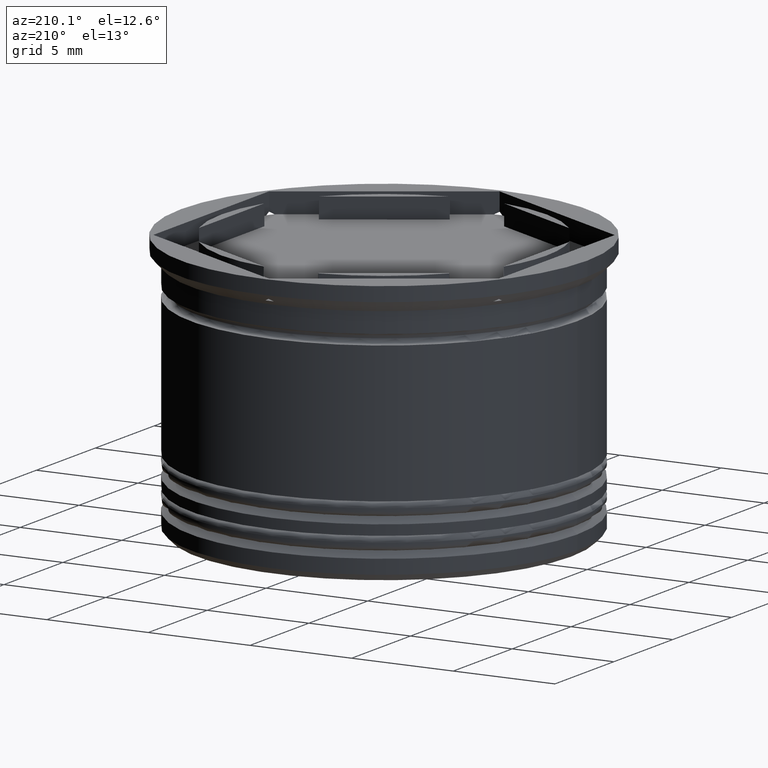
[diagram: clean part render]
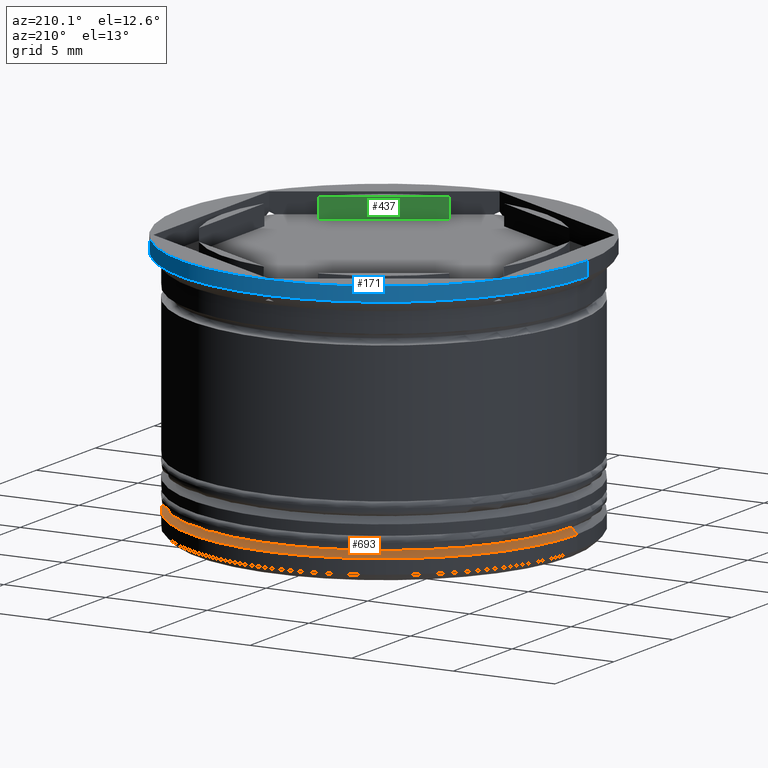
[diagram: same view with three faces highlighted in distinct colors, each labeled with its STEP entity id]
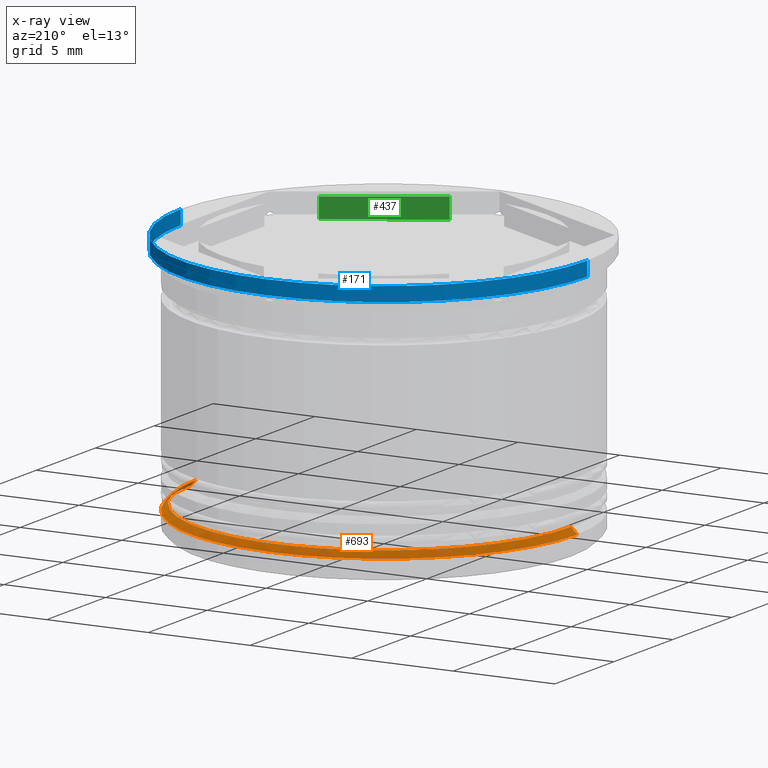
[diagram: x-ray of the same camera — body ghosted, the three highlighted faces saturated]
A machine part, auxiliary view with three faces highlighted in distinct colors.
The next image is the same camera in x-ray (body ghosted, the three faces saturated) — at least one of them is partly hidden behind the body in this view.
Their STEP definitions:

[orange] entity #693 — the highlighted conical surface has half-angle 45 deg.
#18 = EDGE_CURVE ( 'NONE', #648, #598, #1990, .T. ) ;
#23 = CARTESIAN_POINT ( 'NONE',  ( 0.000000000000000000, 0.000000000000000000, -11.50000000000000000 ) ) ;
#271 = CARTESIAN_POINT ( 'NONE',  ( 0.000000000000000000, 0.000000000000000000, -11.70000000000000639 ) ) ;
#315 = ORIENTED_EDGE ( 'NONE', *, *, #565, .F. ) ;
#418 = DIRECTION ( 'NONE',  ( -0.000000000000000000, -0.000000000000000000, 1.000000000000000000 ) ) ;
#468 = CIRCLE ( 'NONE', #2050, 9.199999999999999289 ) ;
#474 = DIRECTION ( 'NONE',  ( 0.7071067811865512365, 8.659560562354978464E-17, -0.7071067811865439090 ) ) ;
#565 = EDGE_CURVE ( 'NONE', #1676, #1988, #981, .T. ) ;
#598 = VERTEX_POINT ( 'NONE', #1150 ) ;
#645 = EDGE_CURVE ( 'NONE', #1988, #598, #748, .T. ) ;
#646 = VECTOR ( 'NONE', #1519, 1000.000000000000000 ) ;
#648 = VERTEX_POINT ( 'NONE', #2051 ) ;
#671 = CARTESIAN_POINT ( 'NONE',  ( 0.000000000000000000, 0.000000000000000000, -12.00000000000000355 ) ) ;
#693 = ADVANCED_FACE ( 'NONE', ( #1243 ), #893, .T. ) ;
#710 = CARTESIAN_POINT ( 'NONE',  ( -9.500000000000001776, 1.163414459189985682E-15, -12.00000000000000355 ) ) ;
#748 = CIRCLE ( 'NONE', #1561, 9.500000000000001776 ) ;
#813 = AXIS2_PLACEMENT_3D ( 'NONE', #23, #1385, #1200 ) ;
#893 = CONICAL_SURFACE ( 'NONE', #813, 8.999999999999992895, 0.7853981633974533860 ) ;
#965 = CARTESIAN_POINT ( 'NONE',  ( -9.199999999999999289, 1.126675055215564822E-15, -11.70000000000000639 ) ) ;
#968 = EDGE_LOOP ( 'NONE', ( #1274, #1409, #2060, #315 ) ) ;
#981 = LINE ( 'NONE', #2174, #646 ) ;
#1150 = CARTESIAN_POINT ( 'NONE',  ( 9.500000000000001776, 0.000000000000000000, -12.00000000000000355 ) ) ;
#1200 = DIRECTION ( 'NONE',  ( -1.000000000000000000, 0.000000000000000000, 0.000000000000000000 ) ) ;
#1243 = FACE_OUTER_BOUND ( 'NONE', #968, .T. ) ;
#1270 = DIRECTION ( 'NONE',  ( -1.000000000000000000, 0.000000000000000000, 0.000000000000000000 ) ) ;
#1274 = ORIENTED_EDGE ( 'NONE', *, *, #2080, .F. ) ;
#1326 = CARTESIAN_POINT ( 'NONE',  ( 8.999999999999992895, 1.102182119232616925E-15, -11.50000000000000000 ) ) ;
#1346 = DIRECTION ( 'NONE',  ( 0.000000000000000000, 0.000000000000000000, -1.000000000000000000 ) ) ;
#1385 = DIRECTION ( 'NONE',  ( 0.000000000000000000, 0.000000000000000000, -1.000000000000000000 ) ) ;
#1409 = ORIENTED_EDGE ( 'NONE', *, *, #18, .T. ) ;
#1519 = DIRECTION ( 'NONE',  ( -0.7071067811865512365, 0.000000000000000000, -0.7071067811865439090 ) ) ;
#1561 = AXIS2_PLACEMENT_3D ( 'NONE', #671, #1346, #1879 ) ;
#1676 = VERTEX_POINT ( 'NONE', #965 ) ;
#1761 = VECTOR ( 'NONE', #474, 1000.000000000000000 ) ;
#1879 = DIRECTION ( 'NONE',  ( -1.000000000000000000, 0.000000000000000000, 0.000000000000000000 ) ) ;
#1988 = VERTEX_POINT ( 'NONE', #710 ) ;
#1990 = LINE ( 'NONE', #1326, #1761 ) ;
#2050 = AXIS2_PLACEMENT_3D ( 'NONE', #271, #418, #1270 ) ;
#2051 = CARTESIAN_POINT ( 'NONE',  ( 9.199999999999999289, 0.000000000000000000, -11.70000000000000639 ) ) ;
#2060 = ORIENTED_EDGE ( 'NONE', *, *, #645, .F. ) ;
#2080 = EDGE_CURVE ( 'NONE', #648, #1676, #468, .T. ) ;
#2174 = CARTESIAN_POINT ( 'NONE',  ( -8.999999999999992895, 0.000000000000000000, -11.50000000000000000 ) ) ;

[blue] entity #171 — the highlighted cylindrical surface (partial cylindrical patch) has radius 10 mm, axis along (-0, -0, 1).
#109 = CIRCLE ( 'NONE', #278, 10.00000000000000000 ) ;
#165 = DIRECTION ( 'NONE',  ( 1.000000000000000000, 0.000000000000000000, 0.000000000000000000 ) ) ;
#171 = ADVANCED_FACE ( 'NONE', ( #184 ), #2004, .T. ) ;
#184 = FACE_OUTER_BOUND ( 'NONE', #922, .T. ) ;
#278 = AXIS2_PLACEMENT_3D ( 'NONE', #793, #800, #165 ) ;
#337 = EDGE_CURVE ( 'NONE', #386, #1111, #997, .T. ) ;
#345 = ORIENTED_EDGE ( 'NONE', *, *, #1946, .F. ) ;
#386 = VERTEX_POINT ( 'NONE', #2129 ) ;
#460 = CARTESIAN_POINT ( 'NONE',  ( -10.00000000000000000, 1.224646799147353256E-15, 0.000000000000000000 ) ) ;
#477 = DIRECTION ( 'NONE',  ( -0.000000000000000000, -0.000000000000000000, 1.000000000000000000 ) ) ;
#572 = AXIS2_PLACEMENT_3D ( 'NONE', #882, #1725, #1555 ) ;
#793 = CARTESIAN_POINT ( 'NONE',  ( 0.000000000000000000, 0.000000000000000000, 0.000000000000000000 ) ) ;
#800 = DIRECTION ( 'NONE',  ( -0.000000000000000000, -0.000000000000000000, 1.000000000000000000 ) ) ;
#805 = DIRECTION ( 'NONE',  ( -0.000000000000000000, -0.000000000000000000, 1.000000000000000000 ) ) ;
#822 = DIRECTION ( 'NONE',  ( 1.000000000000000000, 0.000000000000000000, 0.000000000000000000 ) ) ;
#882 = CARTESIAN_POINT ( 'NONE',  ( 0.000000000000000000, 0.000000000000000000, -0.6999999999999968470 ) ) ;
#905 = DIRECTION ( 'NONE',  ( -0.000000000000000000, -0.000000000000000000, 1.000000000000000000 ) ) ;
#922 = EDGE_LOOP ( 'NONE', ( #1023, #1992, #2110, #345 ) ) ;
#997 = CIRCLE ( 'NONE', #572, 10.00000000000000000 ) ;
#1023 = ORIENTED_EDGE ( 'NONE', *, *, #337, .T. ) ;
#1070 = EDGE_CURVE ( 'NONE', #1111, #1870, #1202, .T. ) ;
#1111 = VERTEX_POINT ( 'NONE', #1704 ) ;
#1202 = LINE ( 'NONE', #1715, #2124 ) ;
#1503 = CARTESIAN_POINT ( 'NONE',  ( 10.00000000000000000, 0.000000000000000000, 0.000000000000000000 ) ) ;
#1555 = DIRECTION ( 'NONE',  ( -1.000000000000000000, 0.000000000000000000, 0.000000000000000000 ) ) ;
#1598 = EDGE_CURVE ( 'NONE', #1659, #1870, #109, .T. ) ;
#1625 = AXIS2_PLACEMENT_3D ( 'NONE', #1664, #477, #822 ) ;
#1633 = VECTOR ( 'NONE', #805, 1000.000000000000000 ) ;
#1659 = VERTEX_POINT ( 'NONE', #1503 ) ;
#1664 = CARTESIAN_POINT ( 'NONE',  ( 0.000000000000000000, 0.000000000000000000, 0.000000000000000000 ) ) ;
#1677 = CARTESIAN_POINT ( 'NONE',  ( 10.00000000000000000, 0.000000000000000000, 0.000000000000000000 ) ) ;
#1704 = CARTESIAN_POINT ( 'NONE',  ( -10.00000000000000000, 1.224646799147353256E-15, -0.6999999999999968470 ) ) ;
#1715 = CARTESIAN_POINT ( 'NONE',  ( -10.00000000000000000, 1.224646799147353256E-15, 0.000000000000000000 ) ) ;
#1725 = DIRECTION ( 'NONE',  ( -0.000000000000000000, -0.000000000000000000, 1.000000000000000000 ) ) ;
#1818 = LINE ( 'NONE', #1677, #1633 ) ;
#1870 = VERTEX_POINT ( 'NONE', #460 ) ;
#1946 = EDGE_CURVE ( 'NONE', #386, #1659, #1818, .T. ) ;
#1992 = ORIENTED_EDGE ( 'NONE', *, *, #1070, .T. ) ;
#2004 = CYLINDRICAL_SURFACE ( 'NONE', #1625, 10.00000000000000000 ) ;
#2110 = ORIENTED_EDGE ( 'NONE', *, *, #1598, .F. ) ;
#2124 = VECTOR ( 'NONE', #905, 1000.000000000000000 ) ;
#2129 = CARTESIAN_POINT ( 'NONE',  ( 10.00000000000000000, 0.000000000000000000, -0.6999999999999968470 ) ) ;

[green] entity #437 — the highlighted planar face has unit normal (0.5, -0.866, 0).
#64 = LINE ( 'NONE', #1937, #261 ) ;
#65 = ORIENTED_EDGE ( 'NONE', *, *, #2096, .T. ) ;
#67 = DIRECTION ( 'NONE',  ( -0.000000000000000000, -0.000000000000000000, -1.000000000000000000 ) ) ;
#106 = DIRECTION ( 'NONE',  ( 0.8660254037844387076, 0.4999999999999997780, 0.000000000000000000 ) ) ;
#121 = EDGE_CURVE ( 'NONE', #750, #629, #208, .T. ) ;
#204 = CARTESIAN_POINT ( 'NONE',  ( 1.339087309751754606, -7.887131619090796519, 22.62741699796951522 ) ) ;
#208 = LINE ( 'NONE', #885, #891 ) ;
#261 = VECTOR ( 'NONE', #1239, 999.9999999999998863 ) ;
#422 = PLANE ( 'NONE',  #1663 ) ;
#432 = FACE_OUTER_BOUND ( 'NONE', #737, .T. ) ;
#437 = ADVANCED_FACE ( 'NONE', ( #432 ), #422, .F. ) ;
#480 = CARTESIAN_POINT ( 'NONE',  ( -4.336808689942017736E-16, -8.660254037844385522, -1.000000000000000888 ) ) ;
#505 = VECTOR ( 'NONE', #67, 1000.000000000000000 ) ;
#629 = VERTEX_POINT ( 'NONE', #1337 ) ;
#737 = EDGE_LOOP ( 'NONE', ( #65, #1309, #1735, #1728 ) ) ;
#750 = VERTEX_POINT ( 'NONE', #1852 ) ;
#885 = CARTESIAN_POINT ( 'NONE',  ( 6.160912690248240509, -5.103249437675781763, 22.62741699796951522 ) ) ;
#891 = VECTOR ( 'NONE', #2027, 1000.000000000000000 ) ;
#1074 = EDGE_CURVE ( 'NONE', #1554, #1343, #1406, .T. ) ;
#1089 = DIRECTION ( 'NONE',  ( 0.4999999999999998335, -0.8660254037844388186, 0.000000000000000000 ) ) ;
#1097 = CARTESIAN_POINT ( 'NONE',  ( -4.336808689942017736E-16, -8.660254037844385522, -23.91287847477920181 ) ) ;
#1239 = DIRECTION ( 'NONE',  ( 0.8660254037844388186, 0.4999999999999998335, 0.000000000000000000 ) ) ;
#1309 = ORIENTED_EDGE ( 'NONE', *, *, #121, .F. ) ;
#1337 = CARTESIAN_POINT ( 'NONE',  ( 6.160912690248237844, -5.103249437675785316, 0.000000000000000000 ) ) ;
#1343 = VERTEX_POINT ( 'NONE', #1583 ) ;
#1406 = LINE ( 'NONE', #204, #505 ) ;
#1413 = EDGE_CURVE ( 'NONE', #750, #1343, #1653, .T. ) ;
#1491 = DIRECTION ( 'NONE',  ( -0.8660254037844388186, -0.4999999999999998335, 0.000000000000000000 ) ) ;
#1554 = VERTEX_POINT ( 'NONE', #1739 ) ;
#1583 = CARTESIAN_POINT ( 'NONE',  ( 1.339087309751762600, -7.887131619090796519, -1.000000000000000888 ) ) ;
#1653 = LINE ( 'NONE', #480, #1692 ) ;
#1663 = AXIS2_PLACEMENT_3D ( 'NONE', #1097, #1089, #106 ) ;
#1692 = VECTOR ( 'NONE', #1491, 999.9999999999998863 ) ;
#1728 = ORIENTED_EDGE ( 'NONE', *, *, #1074, .F. ) ;
#1735 = ORIENTED_EDGE ( 'NONE', *, *, #1413, .T. ) ;
#1739 = CARTESIAN_POINT ( 'NONE',  ( 1.339087309751759047, -7.887131619090794743, 0.000000000000000000 ) ) ;
#1852 = CARTESIAN_POINT ( 'NONE',  ( 6.160912690248236068, -5.103249437675788869, -1.000000000000000888 ) ) ;
#1937 = CARTESIAN_POINT ( 'NONE',  ( 3.749999999999997780, -6.495190528383290030, 0.000000000000000000 ) ) ;
#2027 = DIRECTION ( 'NONE',  ( 0.000000000000000000, 0.000000000000000000, 1.000000000000000000 ) ) ;
#2096 = EDGE_CURVE ( 'NONE', #1554, #629, #64, .T. ) ;